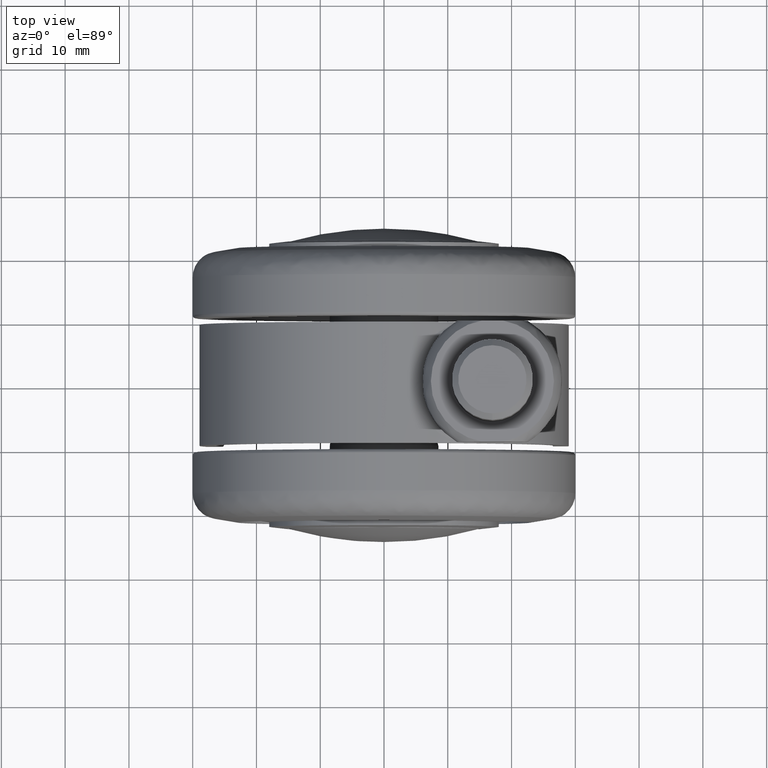
[diagram: clean part render]
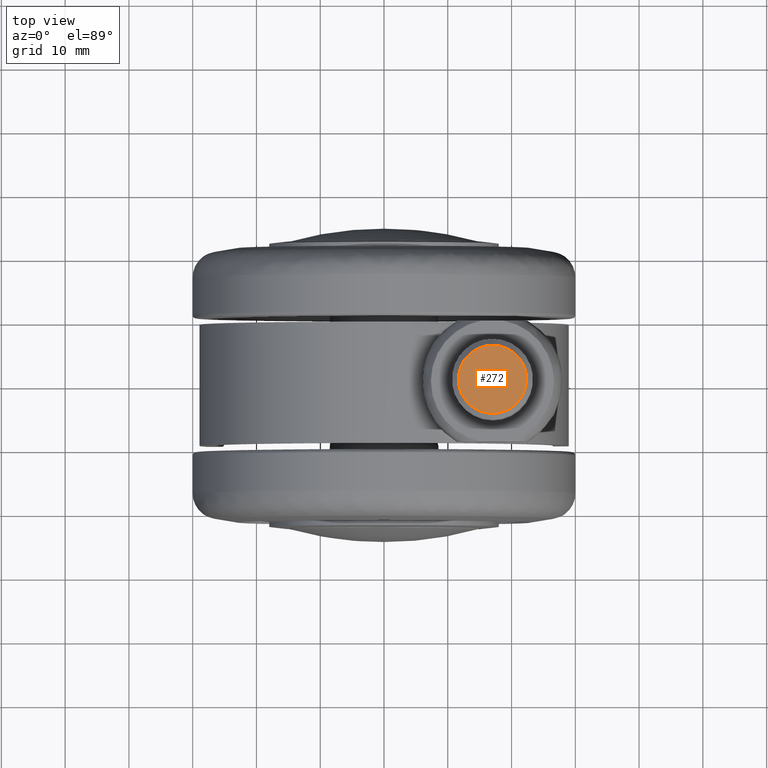
[diagram: same view with one face highlighted and labeled with its STEP entity id]
A machine part, top view. The second image highlights one B-rep face of the part: STEP entity #272.
In plain terms, the highlighted planar face has unit normal (0, -0, -1).
Its self-contained STEP definition (entity closure, byte-faithful):
#272=ADVANCED_FACE('',(#1459),#1458,.F.);
#1458=PLANE('',#4126);
#1459=FACE_OUTER_BOUND('',#4127,.T.);
#4123=CARTESIAN_POINT('',(-2.20000000000E+01,-1.11197661846E+01,1.23050000000E+01));
#4124=DIRECTION('',(1.00000000000E+00,0.00000000000E+00,-0.00000000000E+00));
#4125=DIRECTION('',(-0.00000000000E+00,0.00000000000E+00,-1.00000000000E+00));
#4126=AXIS2_PLACEMENT_3D('',#4123,#4124,#4125);
#4127=EDGE_LOOP('',(#4949,#4950));
#4949=ORIENTED_EDGE('',*,*,#5376,.F.);
#4950=ORIENTED_EDGE('',*,*,#5377,.F.);
#5376=EDGE_CURVE('',#7338,#7339,#7340,.T.);
#5377=EDGE_CURVE('',#7339,#7338,#7346,.T.);
#7338=VERTEX_POINT('',#9412);
#7339=VERTEX_POINT('',#9413);
#7340=CIRCLE('',#9417,5.35000000000E+00);
#7346=CIRCLE('',#9421,5.35000000000E+00);
#9412=CARTESIAN_POINT('',(-2.20000000000E+01,2.96059473233E-16,5.35000000000E+00));
#9413=CARTESIAN_POINT('',(-2.20000000000E+01,0.00000000000E+00,-5.35000000000E+00));
#9414=CARTESIAN_POINT('',(-2.20000000000E+01,0.00000000000E+00,0.00000000000E+00));
#9415=DIRECTION('',(1.00000000000E+00,0.00000000000E+00,0.00000000000E+00));
#9416=DIRECTION('',(0.00000000000E+00,-1.22460635382E-16,-1.00000000000E+00));
#9417=AXIS2_PLACEMENT_3D('',#9414,#9415,#9416);
#9418=CARTESIAN_POINT('',(-2.20000000000E+01,0.00000000000E+00,0.00000000000E+00));
#9419=DIRECTION('',(1.00000000000E+00,0.00000000000E+00,0.00000000000E+00));
#9420=DIRECTION('',(0.00000000000E+00,-1.22460635382E-16,-1.00000000000E+00));
#9421=AXIS2_PLACEMENT_3D('',#9418,#9419,#9420);